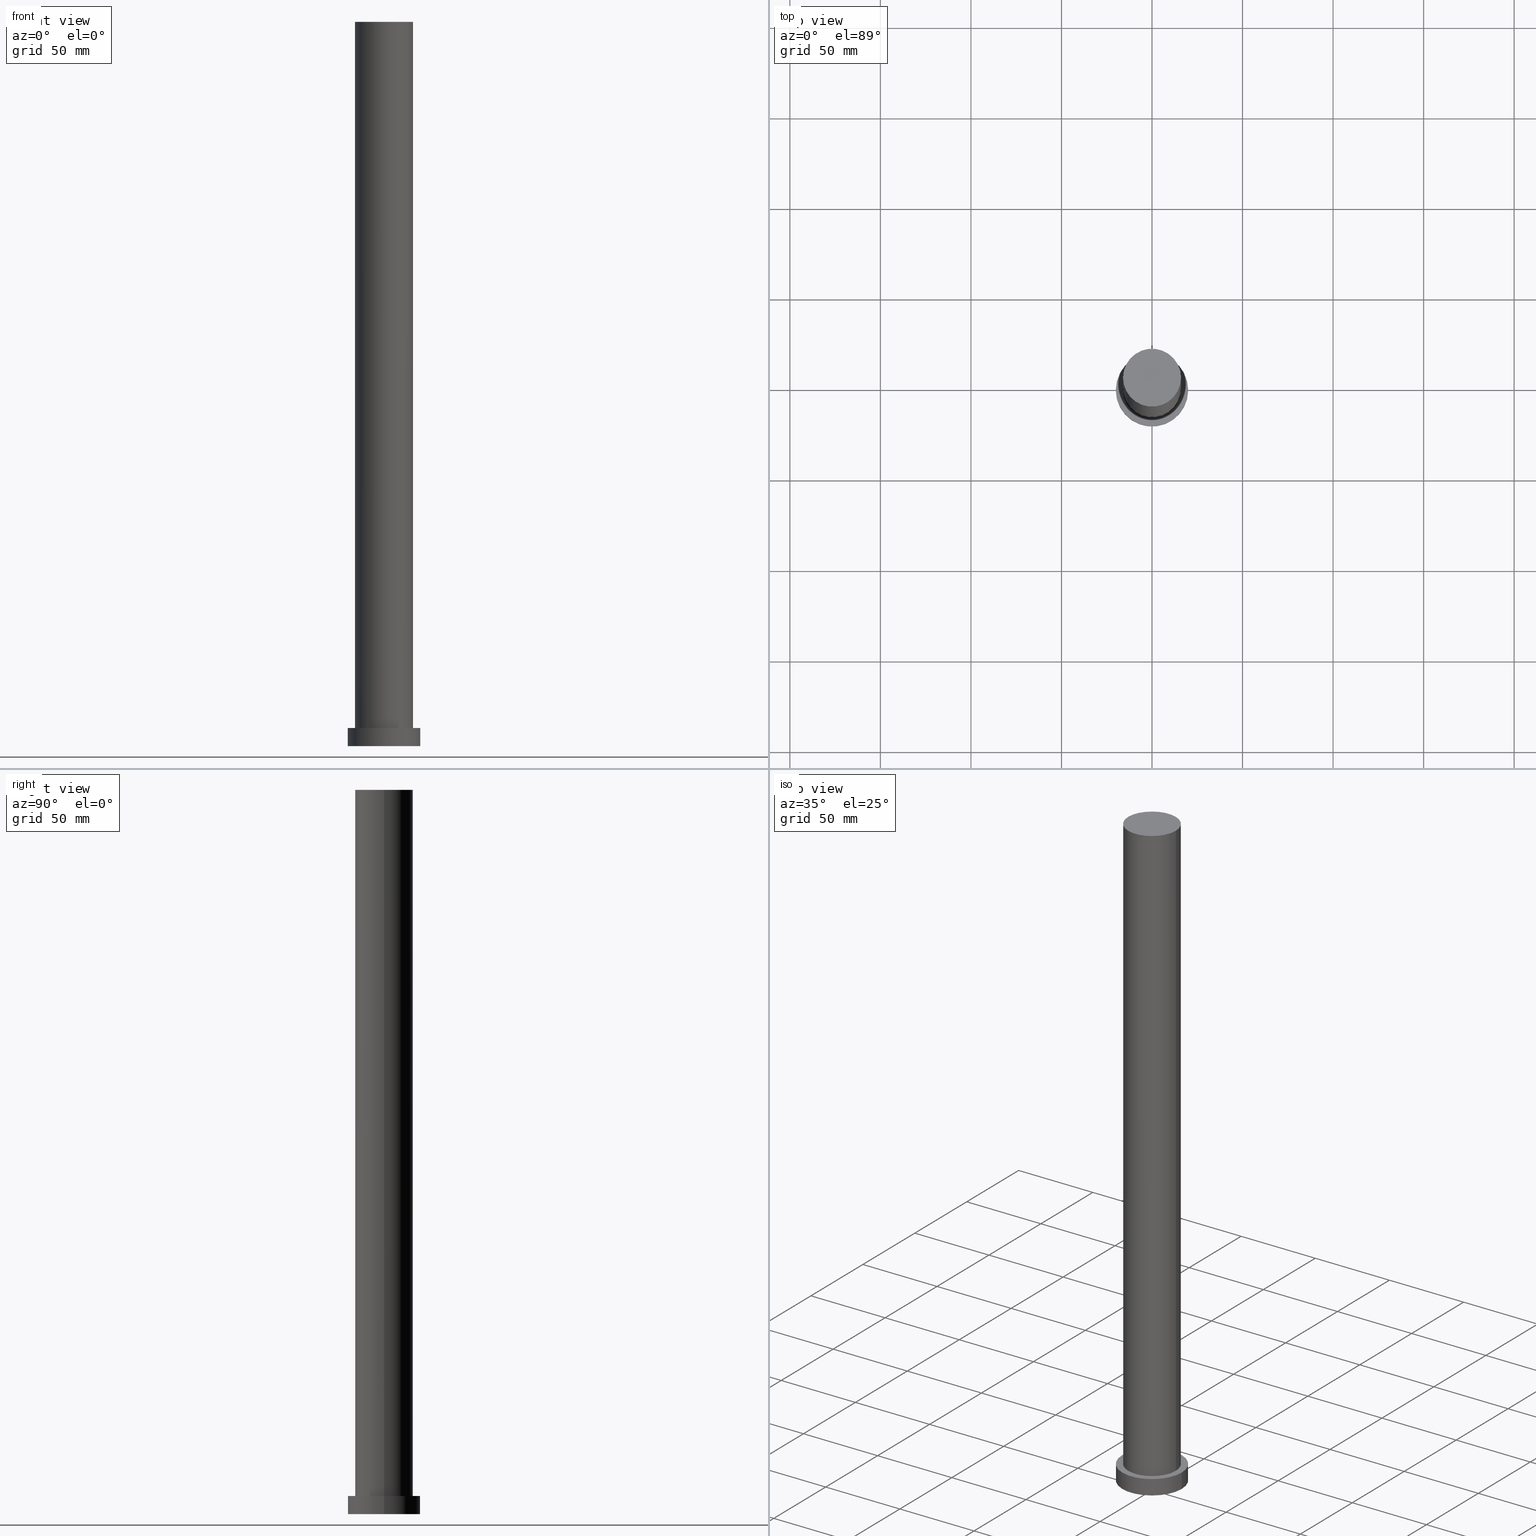
[diagram: canonical four-view strip — front | top / right | iso, engineering-drawing reading convention]
A machine part, canonical four-view strip (front | top / right | iso — engineering-drawing reading convention). The complete STEP part file that produces these views, byte-faithful:
ISO-10303-21;
HEADER;
FILE_DESCRIPTION (( 'STEP AP203' ),
    '1' );
FILE_NAME ('4156.STEP',
    '2023-02-13T07:29:16',
    ( '' ),
    ( '' ),
    'SwSTEP 2.0',
    'SolidWorks 2019',
    '' );
FILE_SCHEMA (( 'CONFIG_CONTROL_DESIGN' ));
ENDSEC;

DATA;
#1 = SECURITY_CLASSIFICATION ( '', '', #251 ) ;
#2 = ADVANCED_FACE ( 'NONE', ( #168 ), #244, .T. ) ;
#3 = FACE_OUTER_BOUND ( 'NONE', #26, .T. ) ;
#4 = PLANE ( 'NONE',  #28 ) ;
#5 = CC_DESIGN_PERSON_AND_ORGANIZATION_ASSIGNMENT ( #33, #213, ( #23 ) ) ;
#6 = CARTESIAN_POINT ( 'NONE',  ( 0.000000000000000000, 0.000000000000000000, 10.00000000000000000 ) ) ;
#7 = DATE_TIME_ROLE ( 'creation_date' ) ;
#8 = PERSON_AND_ORGANIZATION ( #219, #21 ) ;
#9 = ORIENTED_EDGE ( 'NONE', *, *, #22, .F. ) ;
#10 = VERTEX_POINT ( 'NONE', #237 ) ;
#11 = EDGE_LOOP ( 'NONE', ( #90, #30, #187, #191 ) ) ;
#12 = DATE_TIME_ROLE ( 'classification_date' ) ;
#13 = CYLINDRICAL_SURFACE ( 'NONE', #153, 16.00000000000000000 ) ;
#14 = EDGE_CURVE ( 'NONE', #172, #137, #65, .T. ) ;
#15 = PLANE ( 'NONE',  #84 ) ;
#16 = VECTOR ( 'NONE', #215, 1000.000000000000000 ) ;
#17 = APPROVAL_PERSON_ORGANIZATION ( #39, #63, #184 ) ;
#18 = CARTESIAN_POINT ( 'NONE',  ( 20.00000000000000000, 2.449293598294706513E-15, 10.00000000000000000 ) ) ;
#19 = CARTESIAN_POINT ( 'NONE',  ( 0.000000000000000000, 0.000000000000000000, 400.0000000000000000 ) ) ;
#20 = APPROVAL_DATE_TIME ( #132, #158 ) ;
#21 = ORGANIZATION ( 'NEUR�EN�', 'NEUR�EN�', '' ) ;
#22 = EDGE_CURVE ( 'NONE', #140, #118, #36, .T. ) ;
#23 = PRODUCT_DEFINITION_FORMATION_WITH_SPECIFIED_SOURCE ( 'LIBOVOLN�', '', #236, .NOT_KNOWN. ) ;
#24 = VERTEX_POINT ( 'NONE', #253 ) ;
#25 =( NAMED_UNIT ( * ) SI_UNIT ( $, .STERADIAN. ) SOLID_ANGLE_UNIT ( ) );
#26 = EDGE_LOOP ( 'NONE', ( #86, #133, #71, #226 ) ) ;
#27 =( NAMED_UNIT ( * ) PLANE_ANGLE_UNIT ( ) SI_UNIT ( $, .RADIAN. ) );
#28 = AXIS2_PLACEMENT_3D ( 'NONE', #80, #163, #123 ) ;
#29 = ORIENTED_EDGE ( 'NONE', *, *, #190, .F. ) ;
#30 = ORIENTED_EDGE ( 'NONE', *, *, #49, .F. ) ;
#31 = CARTESIAN_POINT ( 'NONE',  ( 0.000000000000000000, 0.000000000000000000, 10.00000000000000000 ) ) ;
#32 = DIRECTION ( 'NONE',  ( -0.000000000000000000, -0.000000000000000000, -1.000000000000000000 ) ) ;
#33 = PERSON_AND_ORGANIZATION ( #219, #21 ) ;
#34 = DIRECTION ( 'NONE',  ( 0.000000000000000000, 0.000000000000000000, 1.000000000000000000 ) ) ;
#35 = PLANE ( 'NONE',  #188 ) ;
#36 = CIRCLE ( 'NONE', #136, 20.00000000000000000 ) ;
#37 = CARTESIAN_POINT ( 'NONE',  ( 0.000000000000000000, 0.000000000000000000, 400.0000000000000000 ) ) ;
#38 = PERSON_AND_ORGANIZATION_ROLE ( 'design_owner' ) ;
#39 = PERSON_AND_ORGANIZATION ( #219, #21 ) ;
#40 = EDGE_CURVE ( 'NONE', #140, #159, #96, .T. ) ;
#41 = ADVANCED_FACE ( 'NONE', ( #92 ), #15, .T. ) ;
#42 = COORDINATED_UNIVERSAL_TIME_OFFSET ( 1, 0, .AHEAD. ) ;
#43 = AXIS2_PLACEMENT_3D ( 'NONE', #19, #110, #87 ) ;
#44 = LOCAL_TIME ( 8, 29, 16.00000000000000000, #177 ) ;
#45 = CARTESIAN_POINT ( 'NONE',  ( -16.00000000000000000, 0.000000000000000000, 10.00000000000000000 ) ) ;
#46 = EDGE_LOOP ( 'NONE', ( #91, #231 ) ) ;
#47 = CC_DESIGN_DATE_AND_TIME_ASSIGNMENT ( #120, #12, ( #1 ) ) ;
#48 = ORIENTED_EDGE ( 'NONE', *, *, #14, .F. ) ;
#49 = EDGE_CURVE ( 'NONE', #10, #24, #238, .T. ) ;
#50 = DIRECTION ( 'NONE',  ( -0.000000000000000000, -0.000000000000000000, -1.000000000000000000 ) ) ;
#51 = APPROVAL_DATE_TIME ( #198, #119 ) ;
#52 = EDGE_CURVE ( 'NONE', #118, #171, #182, .T. ) ;
#53 = CYLINDRICAL_SURFACE ( 'NONE', #240, 20.00000000000000000 ) ;
#54 = LOCAL_TIME ( 8, 29, 16.00000000000000000, #42 ) ;
#55 = EDGE_CURVE ( 'NONE', #137, #172, #249, .T. ) ;
#56 = CARTESIAN_POINT ( 'NONE',  ( 0.000000000000000000, 0.000000000000000000, 0.000000000000000000 ) ) ;
#57 = ADVANCED_FACE ( 'NONE', ( #141 ), #176, .T. ) ;
#58 = DESIGN_CONTEXT ( 'detailed design', #194, 'design' ) ;
#59 = CARTESIAN_POINT ( 'NONE',  ( 0.000000000000000000, 0.000000000000000000, 400.0000000000000000 ) ) ;
#60 = CARTESIAN_POINT ( 'NONE',  ( 0.000000000000000000, 0.000000000000000000, 400.0000000000000000 ) ) ;
#61 = AXIS2_PLACEMENT_3D ( 'NONE', #60, #79, #221 ) ;
#62 = CARTESIAN_POINT ( 'NONE',  ( 0.000000000000000000, 0.000000000000000000, 0.000000000000000000 ) ) ;
#63 = APPROVAL ( #127, 'NEUR�EN�' ) ;
#64 = DIRECTION ( 'NONE',  ( 0.000000000000000000, 0.000000000000000000, 1.000000000000000000 ) ) ;
#65 = CIRCLE ( 'NONE', #98, 16.00000000000000000 ) ;
#66 = DIRECTION ( 'NONE',  ( -0.000000000000000000, -0.000000000000000000, -1.000000000000000000 ) ) ;
#67 = CALENDAR_DATE ( 2023, 13, 2 ) ;
#68 = CARTESIAN_POINT ( 'NONE',  ( 0.000000000000000000, 0.000000000000000000, 0.000000000000000000 ) ) ;
#69 = PRODUCT_RELATED_PRODUCT_CATEGORY ( 'detail', '', ( #236 ) ) ;
#70 = ORIENTED_EDGE ( 'NONE', *, *, #55, .F. ) ;
#71 = ORIENTED_EDGE ( 'NONE', *, *, #75, .T. ) ;
#72 = EDGE_LOOP ( 'NONE', ( #113, #131, #109, #211 ) ) ;
#73 = AXIS2_PLACEMENT_3D ( 'NONE', #59, #202, #234 ) ;
#74 = PERSON_AND_ORGANIZATION ( #219, #21 ) ;
#75 = EDGE_CURVE ( 'NONE', #171, #159, #173, .T. ) ;
#76 = CARTESIAN_POINT ( 'NONE',  ( 0.000000000000000000, 0.000000000000000000, 10.00000000000000000 ) ) ;
#77 = DATE_AND_TIME ( #243, #112 ) ;
#78 = DIRECTION ( 'NONE',  ( 1.000000000000000000, 0.000000000000000000, 0.000000000000000000 ) ) ;
#79 = DIRECTION ( 'NONE',  ( -0.000000000000000000, -0.000000000000000000, -1.000000000000000000 ) ) ;
#80 = CARTESIAN_POINT ( 'NONE',  ( 0.000000000000000000, 0.000000000000000000, 0.000000000000000000 ) ) ;
#81 = VECTOR ( 'NONE', #66, 1000.000000000000000 ) ;
#82 = MECHANICAL_CONTEXT ( 'NONE', #83, 'mechanical' ) ;
#83 = APPLICATION_CONTEXT ( 'configuration controlled 3d designs of mechanical parts and assemblies' ) ;
#84 = AXIS2_PLACEMENT_3D ( 'NONE', #37, #100, #161 ) ;
#85 = DIRECTION ( 'NONE',  ( 0.000000000000000000, 0.000000000000000000, 1.000000000000000000 ) ) ;
#86 = ORIENTED_EDGE ( 'NONE', *, *, #165, .F. ) ;
#87 = DIRECTION ( 'NONE',  ( 1.000000000000000000, 0.000000000000000000, 0.000000000000000000 ) ) ;
#88 = ORIENTED_EDGE ( 'NONE', *, *, #49, .T. ) ;
#89 = CC_DESIGN_APPROVAL ( #158, ( #185 ) ) ;
#90 = ORIENTED_EDGE ( 'NONE', *, *, #196, .F. ) ;
#91 = ORIENTED_EDGE ( 'NONE', *, *, #22, .T. ) ;
#92 = FACE_OUTER_BOUND ( 'NONE', #111, .T. ) ;
#93 = ADVANCED_FACE ( 'NONE', ( #3 ), #53, .T. ) ;
#94 = APPROVAL_STATUS ( 'not_yet_approved' ) ;
#95 = PERSON_AND_ORGANIZATION ( #219, #21 ) ;
#96 = LINE ( 'NONE', #250, #16 ) ;
#97 = AXIS2_PLACEMENT_3D ( 'NONE', #203, #64, #242 ) ;
#98 = AXIS2_PLACEMENT_3D ( 'NONE', #232, #178, #117 ) ;
#99 = FACE_OUTER_BOUND ( 'NONE', #72, .T. ) ;
#100 = DIRECTION ( 'NONE',  ( 0.000000000000000000, 0.000000000000000000, 1.000000000000000000 ) ) ;
#101 = PERSON_AND_ORGANIZATION_ROLE ( 'creator' ) ;
#102 = ADVANCED_FACE ( 'NONE', ( #146, #181 ), #35, .T. ) ;
#103 = PERSON_AND_ORGANIZATION ( #219, #21 ) ;
#104 = MANIFOLD_SOLID_BREP ( 'P�idat vysunut�m3', #210 ) ;
#105 = CC_DESIGN_PERSON_AND_ORGANIZATION_ASSIGNMENT ( #103, #101, ( #185 ) ) ;
#106 = AXIS2_PLACEMENT_3D ( 'NONE', #68, #85, #150 ) ;
#107 = DIRECTION ( 'NONE',  ( -0.000000000000000000, -0.000000000000000000, -1.000000000000000000 ) ) ;
#108 = CC_DESIGN_PERSON_AND_ORGANIZATION_ASSIGNMENT ( #8, #38, ( #236 ) ) ;
#109 = ORIENTED_EDGE ( 'NONE', *, *, #14, .T. ) ;
#110 = DIRECTION ( 'NONE',  ( 0.000000000000000000, 0.000000000000000000, 1.000000000000000000 ) ) ;
#111 = EDGE_LOOP ( 'NONE', ( #88, #186 ) ) ;
#112 = LOCAL_TIME ( 8, 29, 16.00000000000000000, #208 ) ;
#113 = ORIENTED_EDGE ( 'NONE', *, *, #135, .F. ) ;
#114 = ORIENTED_EDGE ( 'NONE', *, *, #52, .F. ) ;
#115 = DIRECTION ( 'NONE',  ( 0.000000000000000000, 0.000000000000000000, 1.000000000000000000 ) ) ;
#116 = CC_DESIGN_APPROVAL ( #119, ( #1 ) ) ;
#117 = DIRECTION ( 'NONE',  ( 1.000000000000000000, 0.000000000000000000, 0.000000000000000000 ) ) ;
#118 = VERTEX_POINT ( 'NONE', #121 ) ;
#119 = APPROVAL ( #94, 'NEUR�EN�' ) ;
#120 = DATE_AND_TIME ( #160, #128 ) ;
#121 = CARTESIAN_POINT ( 'NONE',  ( 20.00000000000000000, 2.449293598294706513E-15, 10.00000000000000000 ) ) ;
#122 = DIRECTION ( 'NONE',  ( -1.000000000000000000, 0.000000000000000000, 0.000000000000000000 ) ) ;
#123 = DIRECTION ( 'NONE',  ( 1.000000000000000000, 0.000000000000000000, -0.000000000000000000 ) ) ;
#124 = PERSON_AND_ORGANIZATION ( #219, #21 ) ;
#125 = ADVANCED_FACE ( 'NONE', ( #99 ), #13, .T. ) ;
#126 = ADVANCED_FACE ( 'NONE', ( #201 ), #4, .F. ) ;
#127 = APPROVAL_STATUS ( 'not_yet_approved' ) ;
#128 = LOCAL_TIME ( 8, 29, 16.00000000000000000, #162 ) ;
#129 = COORDINATED_UNIVERSAL_TIME_OFFSET ( 1, 0, .AHEAD. ) ;
#130 = CIRCLE ( 'NONE', #43, 16.00000000000000000 ) ;
#131 = ORIENTED_EDGE ( 'NONE', *, *, #196, .T. ) ;
#132 = DATE_AND_TIME ( #67, #54 ) ;
#133 = ORIENTED_EDGE ( 'NONE', *, *, #52, .T. ) ;
#134 = CARTESIAN_POINT ( 'NONE',  ( -16.00000000000000000, 0.000000000000000000, 400.0000000000000000 ) ) ;
#135 = EDGE_CURVE ( 'NONE', #24, #10, #130, .T. ) ;
#136 = AXIS2_PLACEMENT_3D ( 'NONE', #31, #212, #147 ) ;
#137 = VERTEX_POINT ( 'NONE', #45 ) ;
#138 = CC_DESIGN_SECURITY_CLASSIFICATION ( #1, ( #23 ) ) ;
#139 = CC_DESIGN_DATE_AND_TIME_ASSIGNMENT ( #223, #7, ( #185 ) ) ;
#140 = VERTEX_POINT ( 'NONE', #169 ) ;
#141 = FACE_OUTER_BOUND ( 'NONE', #11, .T. ) ;
#142 = APPROVAL_ROLE ( '' ) ;
#143 = PERSON_AND_ORGANIZATION ( #219, #21 ) ;
#144 = CARTESIAN_POINT ( 'NONE',  ( 0.000000000000000000, 0.000000000000000000, 10.00000000000000000 ) ) ;
#145 = APPROVAL_DATE_TIME ( #77, #63 ) ;
#146 = FACE_BOUND ( 'NONE', #230, .T. ) ;
#147 = DIRECTION ( 'NONE',  ( 1.000000000000000000, 0.000000000000000000, 0.000000000000000000 ) ) ;
#148 = AXIS2_PLACEMENT_3D ( 'NONE', #6, #34, #218 ) ;
#149 = CC_DESIGN_APPROVAL ( #63, ( #23 ) ) ;
#150 = DIRECTION ( 'NONE',  ( 1.000000000000000000, 0.000000000000000000, 0.000000000000000000 ) ) ;
#151 = CARTESIAN_POINT ( 'NONE',  ( -20.00000000000000000, 0.000000000000000000, 0.000000000000000000 ) ) ;
#152 = PRODUCT_DEFINITION_SHAPE ( 'NONE', 'NONE',  #185 ) ;
#153 = AXIS2_PLACEMENT_3D ( 'NONE', #199, #179, #122 ) ;
#154 = DIRECTION ( 'NONE',  ( 0.000000000000000000, 0.000000000000000000, 1.000000000000000000 ) ) ;
#155 = CARTESIAN_POINT ( 'NONE',  ( 0.000000000000000000, 0.000000000000000000, 10.00000000000000000 ) ) ;
#156 = CARTESIAN_POINT ( 'NONE',  ( 16.00000000000000000, 1.959434878635765131E-15, 400.0000000000000000 ) ) ;
#157 = ORIENTED_EDGE ( 'NONE', *, *, #75, .F. ) ;
#158 = APPROVAL ( #241, 'NEUR�EN�' ) ;
#159 = VERTEX_POINT ( 'NONE', #151 ) ;
#160 = CALENDAR_DATE ( 2023, 13, 2 ) ;
#161 = DIRECTION ( 'NONE',  ( 1.000000000000000000, 0.000000000000000000, -0.000000000000000000 ) ) ;
#162 = COORDINATED_UNIVERSAL_TIME_OFFSET ( 1, 0, .AHEAD. ) ;
#163 = DIRECTION ( 'NONE',  ( 0.000000000000000000, 0.000000000000000000, 1.000000000000000000 ) ) ;
#164 = CALENDAR_DATE ( 2023, 13, 2 ) ;
#165 = EDGE_CURVE ( 'NONE', #118, #140, #180, .T. ) ;
#166 = DIRECTION ( 'NONE',  ( 1.000000000000000000, 0.000000000000000000, 0.000000000000000000 ) ) ;
#167 = APPLICATION_PROTOCOL_DEFINITION ( 'international standard', 'config_control_design', 1994, #194 ) ;
#168 = FACE_OUTER_BOUND ( 'NONE', #209, .T. ) ;
#169 = CARTESIAN_POINT ( 'NONE',  ( -20.00000000000000000, 0.000000000000000000, 10.00000000000000000 ) ) ;
#170 = APPROVAL_PERSON_ORGANIZATION ( #124, #158, #204 ) ;
#171 = VERTEX_POINT ( 'NONE', #246 ) ;
#172 = VERTEX_POINT ( 'NONE', #227 ) ;
#173 = CIRCLE ( 'NONE', #207, 20.00000000000000000 ) ;
#174 = ORIENTED_EDGE ( 'NONE', *, *, #40, .T. ) ;
#175 = APPROVAL_PERSON_ORGANIZATION ( #74, #119, #142 ) ;
#176 = CYLINDRICAL_SURFACE ( 'NONE', #61, 16.00000000000000000 ) ;
#177 = COORDINATED_UNIVERSAL_TIME_OFFSET ( 1, 0, .AHEAD. ) ;
#178 = DIRECTION ( 'NONE',  ( 0.000000000000000000, 0.000000000000000000, 1.000000000000000000 ) ) ;
#179 = DIRECTION ( 'NONE',  ( -0.000000000000000000, -0.000000000000000000, -1.000000000000000000 ) ) ;
#180 = CIRCLE ( 'NONE', #97, 20.00000000000000000 ) ;
#181 = FACE_OUTER_BOUND ( 'NONE', #46, .T. ) ;
#182 = LINE ( 'NONE', #18, #220 ) ;
#183 = LINE ( 'NONE', #156, #192 ) ;
#184 = APPROVAL_ROLE ( '' ) ;
#185 = PRODUCT_DEFINITION ( 'NEZN�M�', '', #23, #58 ) ;
#186 = ORIENTED_EDGE ( 'NONE', *, *, #135, .T. ) ;
#187 = ORIENTED_EDGE ( 'NONE', *, *, #224, .T. ) ;
#188 = AXIS2_PLACEMENT_3D ( 'NONE', #144, #216, #197 ) ;
#189 = EDGE_LOOP ( 'NONE', ( #29, #157 ) ) ;
#190 = EDGE_CURVE ( 'NONE', #159, #171, #222, .T. ) ;
#191 = ORIENTED_EDGE ( 'NONE', *, *, #55, .T. ) ;
#192 = VECTOR ( 'NONE', #107, 1000.000000000000000 ) ;
#193 = DIRECTION ( 'NONE',  ( -1.000000000000000000, 0.000000000000000000, 0.000000000000000000 ) ) ;
#194 = APPLICATION_CONTEXT ( 'configuration controlled 3d designs of mechanical parts and assemblies' ) ;
#195 = PERSON_AND_ORGANIZATION_ROLE ( 'classification_officer' ) ;
#196 = EDGE_CURVE ( 'NONE', #24, #172, #183, .T. ) ;
#197 = DIRECTION ( 'NONE',  ( 1.000000000000000000, 0.000000000000000000, -0.000000000000000000 ) ) ;
#198 = DATE_AND_TIME ( #217, #44 ) ;
#199 = CARTESIAN_POINT ( 'NONE',  ( 0.000000000000000000, 0.000000000000000000, 400.0000000000000000 ) ) ;
#200 = AXIS2_PLACEMENT_3D ( 'NONE', #155, #247, #228 ) ;
#201 = FACE_OUTER_BOUND ( 'NONE', #189, .T. ) ;
#202 = DIRECTION ( 'NONE',  ( 0.000000000000000000, 0.000000000000000000, 1.000000000000000000 ) ) ;
#203 = CARTESIAN_POINT ( 'NONE',  ( 0.000000000000000000, 0.000000000000000000, 10.00000000000000000 ) ) ;
#204 = APPROVAL_ROLE ( '' ) ;
#205 = ADVANCED_BREP_SHAPE_REPRESENTATION ( '4156', ( #104, #245 ), #214 ) ;
#206 = CC_DESIGN_PERSON_AND_ORGANIZATION_ASSIGNMENT ( #143, #233, ( #23 ) ) ;
#207 = AXIS2_PLACEMENT_3D ( 'NONE', #56, #115, #78 ) ;
#208 = COORDINATED_UNIVERSAL_TIME_OFFSET ( 1, 0, .AHEAD. ) ;
#209 = EDGE_LOOP ( 'NONE', ( #114, #9, #174, #248 ) ) ;
#210 = CLOSED_SHELL ( 'NONE', ( #125, #93, #2, #102, #126, #57, #41 ) ) ;
#211 = ORIENTED_EDGE ( 'NONE', *, *, #224, .F. ) ;
#212 = DIRECTION ( 'NONE',  ( 0.000000000000000000, 0.000000000000000000, 1.000000000000000000 ) ) ;
#213 = PERSON_AND_ORGANIZATION_ROLE ( 'creator' ) ;
#214 =( GEOMETRIC_REPRESENTATION_CONTEXT ( 3 ) GLOBAL_UNCERTAINTY_ASSIGNED_CONTEXT ( ( #254 ) ) GLOBAL_UNIT_ASSIGNED_CONTEXT ( ( #239, #27, #25 ) ) REPRESENTATION_CONTEXT ( 'NONE', 'WORKASPACE' ) );
#215 = DIRECTION ( 'NONE',  ( -0.000000000000000000, -0.000000000000000000, -1.000000000000000000 ) ) ;
#216 = DIRECTION ( 'NONE',  ( 0.000000000000000000, 0.000000000000000000, 1.000000000000000000 ) ) ;
#217 = CALENDAR_DATE ( 2023, 13, 2 ) ;
#218 = DIRECTION ( 'NONE',  ( 1.000000000000000000, 0.000000000000000000, 0.000000000000000000 ) ) ;
#219 = PERSON ( 'NEUR�EN�', 'NEUR�EN�', 'NEUR�EN�', ('NEUR�EN�'), ('NEUR�EN�'), ('NEUR�EN�') ) ;
#220 = VECTOR ( 'NONE', #50, 1000.000000000000000 ) ;
#221 = DIRECTION ( 'NONE',  ( -1.000000000000000000, 0.000000000000000000, 0.000000000000000000 ) ) ;
#222 = CIRCLE ( 'NONE', #106, 20.00000000000000000 ) ;
#223 = DATE_AND_TIME ( #164, #235 ) ;
#224 = EDGE_CURVE ( 'NONE', #10, #137, #229, .T. ) ;
#225 = APPLICATION_PROTOCOL_DEFINITION ( 'international standard', 'config_control_design', 1994, #83 ) ;
#226 = ORIENTED_EDGE ( 'NONE', *, *, #40, .F. ) ;
#227 = CARTESIAN_POINT ( 'NONE',  ( 16.00000000000000000, 1.959434878635765131E-15, 10.00000000000000000 ) ) ;
#228 = DIRECTION ( 'NONE',  ( -1.000000000000000000, 0.000000000000000000, 0.000000000000000000 ) ) ;
#229 = LINE ( 'NONE', #134, #81 ) ;
#230 = EDGE_LOOP ( 'NONE', ( #70, #48 ) ) ;
#231 = ORIENTED_EDGE ( 'NONE', *, *, #165, .T. ) ;
#232 = CARTESIAN_POINT ( 'NONE',  ( 0.000000000000000000, 0.000000000000000000, 10.00000000000000000 ) ) ;
#233 = PERSON_AND_ORGANIZATION_ROLE ( 'design_supplier' ) ;
#234 = DIRECTION ( 'NONE',  ( 1.000000000000000000, 0.000000000000000000, 0.000000000000000000 ) ) ;
#235 = LOCAL_TIME ( 8, 29, 16.00000000000000000, #129 ) ;
#236 = PRODUCT ( '4156', '4156', '', ( #82 ) ) ;
#237 = CARTESIAN_POINT ( 'NONE',  ( -16.00000000000000000, 0.000000000000000000, 400.0000000000000000 ) ) ;
#238 = CIRCLE ( 'NONE', #73, 16.00000000000000000 ) ;
#239 =( LENGTH_UNIT ( ) NAMED_UNIT ( * ) SI_UNIT ( .MILLI., .METRE. ) );
#240 = AXIS2_PLACEMENT_3D ( 'NONE', #76, #32, #193 ) ;
#241 = APPROVAL_STATUS ( 'not_yet_approved' ) ;
#242 = DIRECTION ( 'NONE',  ( 1.000000000000000000, 0.000000000000000000, 0.000000000000000000 ) ) ;
#243 = CALENDAR_DATE ( 2023, 13, 2 ) ;
#244 = CYLINDRICAL_SURFACE ( 'NONE', #200, 20.00000000000000000 ) ;
#245 = AXIS2_PLACEMENT_3D ( 'NONE', #62, #154, #166 ) ;
#246 = CARTESIAN_POINT ( 'NONE',  ( 20.00000000000000000, 2.449293598294706513E-15, 0.000000000000000000 ) ) ;
#247 = DIRECTION ( 'NONE',  ( -0.000000000000000000, -0.000000000000000000, -1.000000000000000000 ) ) ;
#248 = ORIENTED_EDGE ( 'NONE', *, *, #190, .T. ) ;
#249 = CIRCLE ( 'NONE', #148, 16.00000000000000000 ) ;
#250 = CARTESIAN_POINT ( 'NONE',  ( -20.00000000000000000, 0.000000000000000000, 10.00000000000000000 ) ) ;
#251 = SECURITY_CLASSIFICATION_LEVEL ( 'unclassified' ) ;
#252 = CC_DESIGN_PERSON_AND_ORGANIZATION_ASSIGNMENT ( #95, #195, ( #1 ) ) ;
#253 = CARTESIAN_POINT ( 'NONE',  ( 16.00000000000000000, 1.959434878635765131E-15, 400.0000000000000000 ) ) ;
#254 = UNCERTAINTY_MEASURE_WITH_UNIT (LENGTH_MEASURE( 1.000000000000000082E-05 ), #239, 'distance_accuracy_value', 'NONE');
#255 = SHAPE_DEFINITION_REPRESENTATION ( #152, #205 ) ;
ENDSEC;
END-ISO-10303-21;
